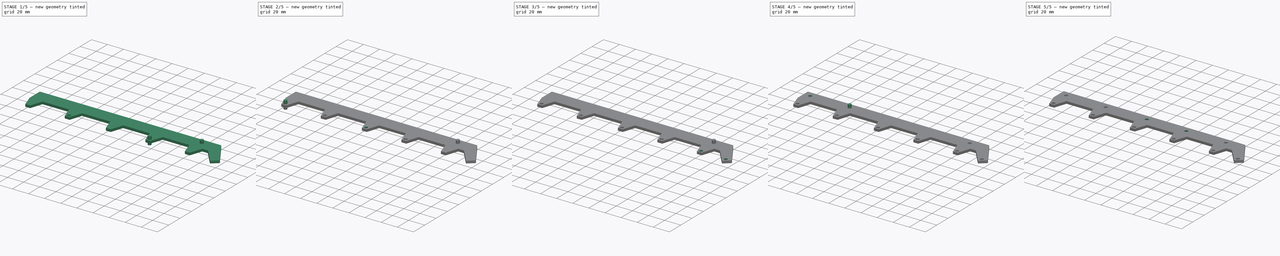
[diagram: build sequence overview — one tinted view per stage of 5, left to right]
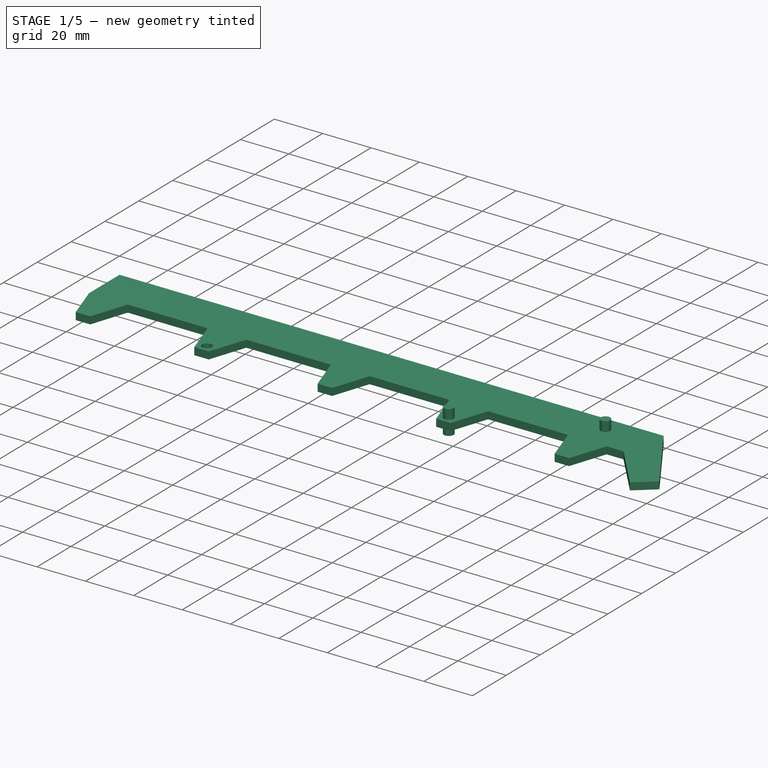
[diagram: stage 1 of 5 — iso view after this stage's code; geometry added in this stage tinted green]
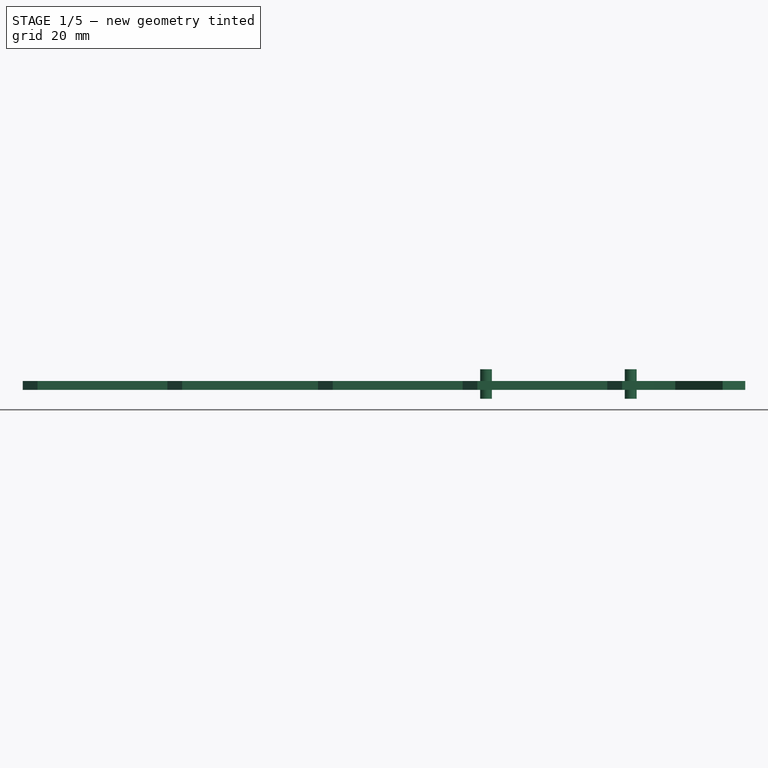
[diagram: stage 1 of 5 — front view after this stage's code; geometry added in this stage tinted green]
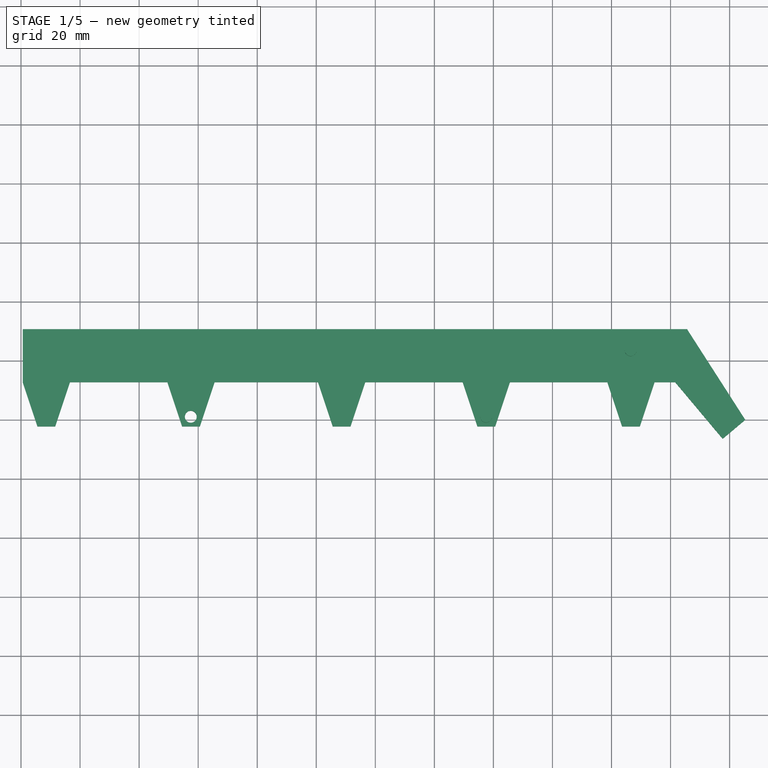
[diagram: stage 1 of 5 — top view after this stage's code; geometry added in this stage tinted green]
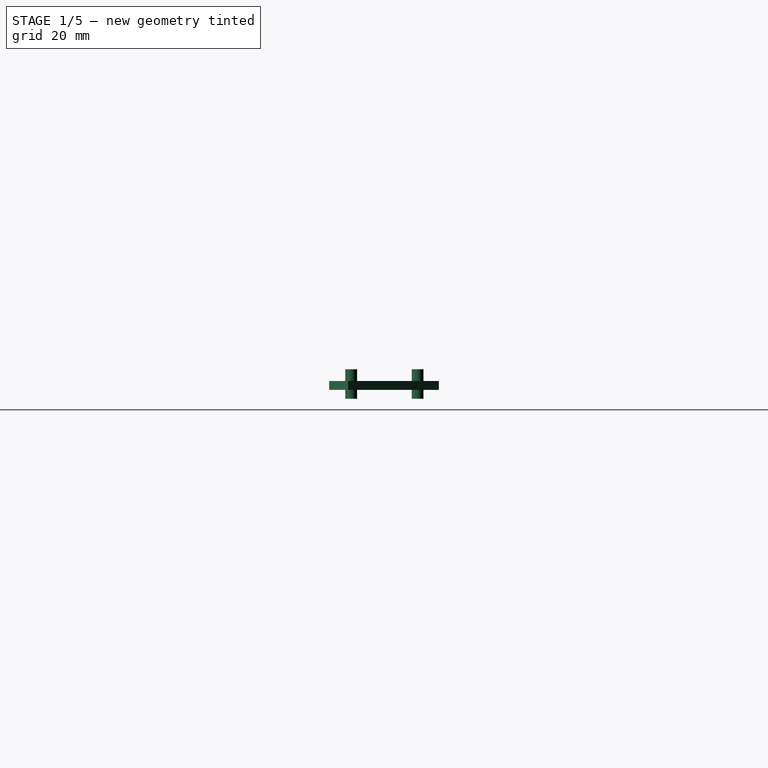
[diagram: stage 1 of 5 — right view after this stage's code; geometry added in this stage tinted green]
FCSTD DOCUMENT  (FreeCAD 0.18R4 (GitTag))
Label: рама внешней подвески
License: All rights reserved
LicenseURL: http://en.wikipedia.org/wiki/All_rights_reserved
objects: Part::Cylinder×11, Part::Cut×11, Sketcher::SketchObject×1, PartDesign::Pad×1, PartDesign::Body×1
note: 26 computed .brp shape members not serialized (recipe doc carries the construction recipe); baked Part::Feature solids carry a one-line shape summary decoded from their .brp

FEATURE [Sketcher::SketchObject] Sketch
  MapMode = 5
  Support = -> [XY_Plane]
  sketch-geometry (25):
    g0: LineSegment StartX=-39.4236 StartY=10.6871 StartZ=0 EndX=185.576 EndY=10.6871 EndZ=0
    g1: LineSegment StartX=-39.4236 StartY=-7.31293 StartZ=0 EndX=-39.4236 EndY=10.6871 EndZ=0
    g2: LineSegment StartX=-39.4236 StartY=-7.31293 StartZ=0 EndX=-34.4236 EndY=-22.3129 EndZ=0
    g3: LineSegment StartX=-28.4236 StartY=-22.3129 StartZ=0 EndX=-23.4236 EndY=-7.31293 EndZ=0
    g4: LineSegment StartX=-23.4236 StartY=-7.31293 StartZ=0 EndX=9.57644 EndY=-7.31293 EndZ=0
    g5: LineSegment StartX=14.5764 StartY=-22.3129 StartZ=0 EndX=20.5764 EndY=-22.3129 EndZ=0
    g6: LineSegment StartX=25.5764 StartY=-7.31293 StartZ=0 EndX=60.5764 EndY=-7.31293 EndZ=0
    g7: LineSegment StartX=9.57644 StartY=-7.31293 StartZ=0 EndX=14.5764 EndY=-22.3129 EndZ=0
    g8: LineSegment StartX=25.5764 StartY=-7.31293 StartZ=0 EndX=20.5764 EndY=-22.3129 EndZ=0
    g9: LineSegment StartX=60.5764 StartY=-7.31293 StartZ=0 EndX=65.5764 EndY=-22.3129 EndZ=0
    g10: LineSegment StartX=65.5764 StartY=-22.3129 StartZ=0 EndX=71.5764 EndY=-22.3129 EndZ=0
    g11: LineSegment StartX=71.5764 StartY=-22.3129 StartZ=0 EndX=76.5764 EndY=-7.31293 EndZ=0
    g12: LineSegment StartX=76.5764 StartY=-7.31293 StartZ=0 EndX=109.576 EndY=-7.31293 EndZ=0
    g13: LineSegment StartX=109.576 StartY=-7.31293 StartZ=0 EndX=114.576 EndY=-22.3129 EndZ=0
    g14: LineSegment StartX=114.576 StartY=-22.3129 StartZ=0 EndX=120.576 EndY=-22.3129 EndZ=0
    g15: LineSegment StartX=120.576 StartY=-22.3129 StartZ=0 EndX=125.576 EndY=-7.31293 EndZ=0
    g16: LineSegment StartX=125.576 StartY=-7.31293 StartZ=0 EndX=158.576 EndY=-7.31293 EndZ=0
    g17: LineSegment StartX=158.576 StartY=-7.31293 StartZ=0 EndX=163.576 EndY=-22.3129 EndZ=0
    g18: LineSegment StartX=163.576 StartY=-22.3129 StartZ=0 EndX=169.576 EndY=-22.3129 EndZ=0
    g19: LineSegment StartX=169.576 StartY=-22.3129 StartZ=0 EndX=174.576 EndY=-7.31293 EndZ=0
    g20: LineSegment StartX=174.576 StartY=-7.31293 StartZ=0 EndX=181.576 EndY=-7.31293 EndZ=0
    g21: LineSegment StartX=185.576 StartY=10.6871 StartZ=0 EndX=205.307 EndY=-20.0362 EndZ=0
    g22: LineSegment StartX=205.307 StartY=-20.0362 StartZ=0 EndX=197.646 EndY=-26.464 EndZ=0
    g23: LineSegment StartX=197.646 StartY=-26.464 StartZ=0 EndX=181.576 EndY=-7.31293 EndZ=0
    g24: LineSegment StartX=-34.4236 StartY=-22.3129 StartZ=0 EndX=-28.4236 EndY=-22.3129 EndZ=0
  constraints (74):
    c: Coincident(g1,g0)
    c: Horizontal(g0)
    c: Vertical(g1)
    c: Distance(g1) = 18
    c: DistanceX(g2,g2) = 5
    c: Coincident(g1,g2)
    c: Distance(g0) = 225
    c: DistanceY(g2,g2) = 15
    c: Equal(g2,g3) = 5
    c: Equal(g2,g3) = 15
    c: DistanceX(g3,g3) = 5
    c: Distance(g4) = 33
    c: Coincident(g3,g4)
    c: Coincident(g5,g7)
    c: Coincident(g4,g7)
    c: Coincident(g6,g8)
    c: Coincident(g5,g8)
    c: DistanceY(g7,g7) = 15
    c: DistanceX(g7,g7) = 5
    c: DistanceX(g5,g5) = 6
    c: Parallel(g5,g0)
    c: Parallel(g6,g0)
    c: DistanceX(g8,g8) = 5
    c: DistanceY(g8,g8) = 15
    c: Coincident(g6,g9)
    c: Equal(g9,g7)
    c: Parallel(g9,g7)
    c: Distance(g6) = 35
    c: Coincident(g9,g10)
    c: Parallel(g10,g5)
    c: Equal(g10,g5)
    c: Coincident(g10,g11)
    c: Parallel(g11,g8)
    c: Equal(g11,g8)
    c: Coincident(g11,g12)
    c: Parallel(g12,g6)
    c: Equal(g12,g4)
    c: Coincident(g12,g13)
    c: Parallel(g9,g13)
    c: Equal(g13,g9)
    c: Parallel(g14,g10)
    c: Equal(g14,g10)
    c: Coincident(g13,g14)
    c: Coincident(g14,g15)
    c: Coincident(g15,g16)
    c: Parallel(g15,g11)
    c: Parallel(g16,g-1)
    c: Equal(g15,g11)
    c: Equal(g16,g12)
    c: Coincident(g19,g20)
    c: Coincident(g18,g19)
    c: Coincident(g17,g18)
    c: Coincident(g16,g17)
    c: Parallel(g17,g13)
    c: Parallel(g18,g14)
    c: Parallel(g19,g15)
    c: Parallel(g20,g16)
    c: Equal(g17,g13)
    c: Equal(g18,g14)
    c: Equal(g19,g15)
    c: Coincident(g21,g22)
    c: Coincident(g22,g23)
    c: Perpendicular(g23,g22)
    c: Coincident(g20,g23)
    c: Distance(g20) = 7
    c: Distance(g23) = 25
    c: Distance(g22) = 10
    c: Coincident(g3,g24)
    c: Coincident(g2,g24)
    c: Parallel(g24,g4)
    c: Parallel(g4,g0)
    c: Equal(g5,g24)
    c: Angle(g20,g23) = 2.26893
    c: Coincident(g0,g21)
FEATURE [PartDesign::Pad] Pad
  Length = 3
  Length2 = 100
  Profile = -> Sketch
  Type = 0
FEATURE [PartDesign::Body] Body
  Group = -> [Sketch,Pad]
  Origin = -> Origin
  Tip = -> Pad
FEATURE [Part::Cylinder] Cylinder  label="Цилиндр"
  Angle = 360
  AttacherType = Attacher::AttachEngine3D
  Height = 10
  Placement = pos=(17.5,-19,-3) rot=(0,0,1;0rad)
  Radius = 2
FEATURE [Part::Cylinder] Cylinder002  label="Цилиндр002"
  Angle = 360
  AttacherType = Attacher::AttachEngine3D
  Height = 10
  Placement = pos=(117.5,-19,-3) rot=(0,0,1;0rad)
  Radius = 2
FEATURE [Part::Cut] Cut
  Base = -> Body
  Tool = -> Cylinder
FEATURE [Part::Cylinder] Cylinder006  label="Цилиндр006"
  Angle = 360
  AttacherType = Attacher::AttachEngine3D
  Height = 10
  Placement = pos=(166.5,3.5,-3) rot=(0,0,1;0rad)
  Radius = 2
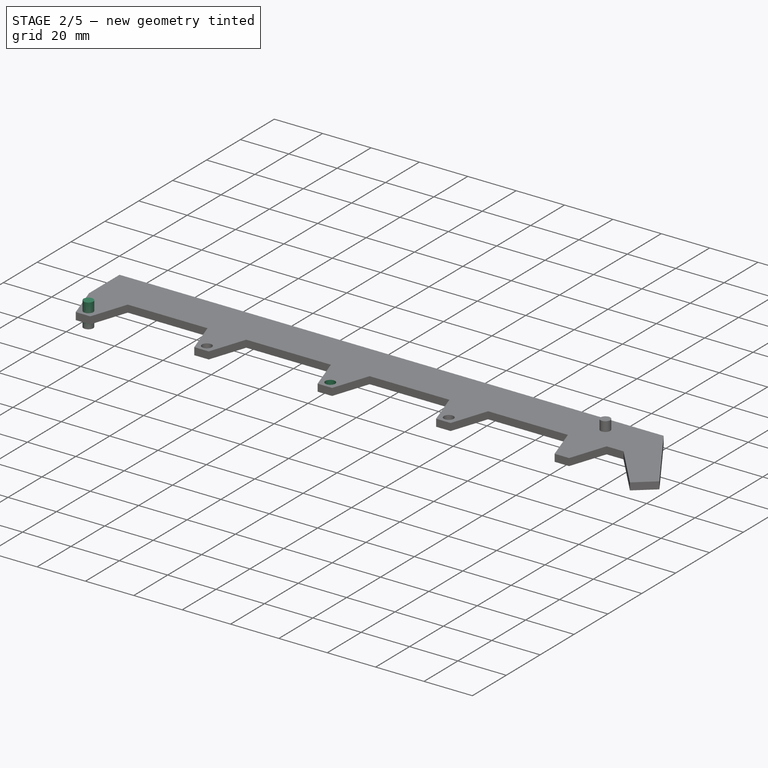
[diagram: stage 2 of 5 — iso view after this stage's code; geometry added in this stage tinted green]
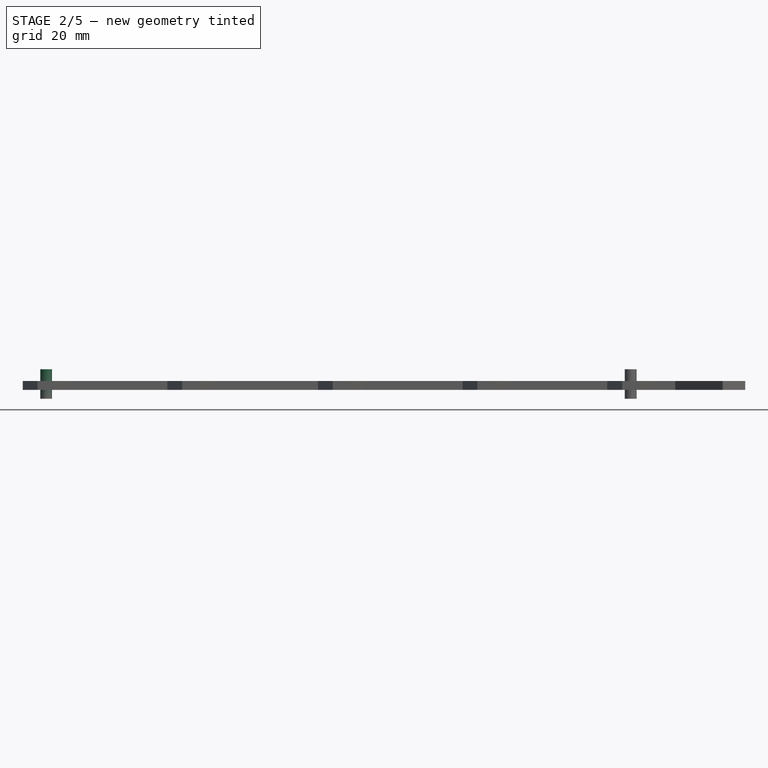
[diagram: stage 2 of 5 — front view after this stage's code; geometry added in this stage tinted green]
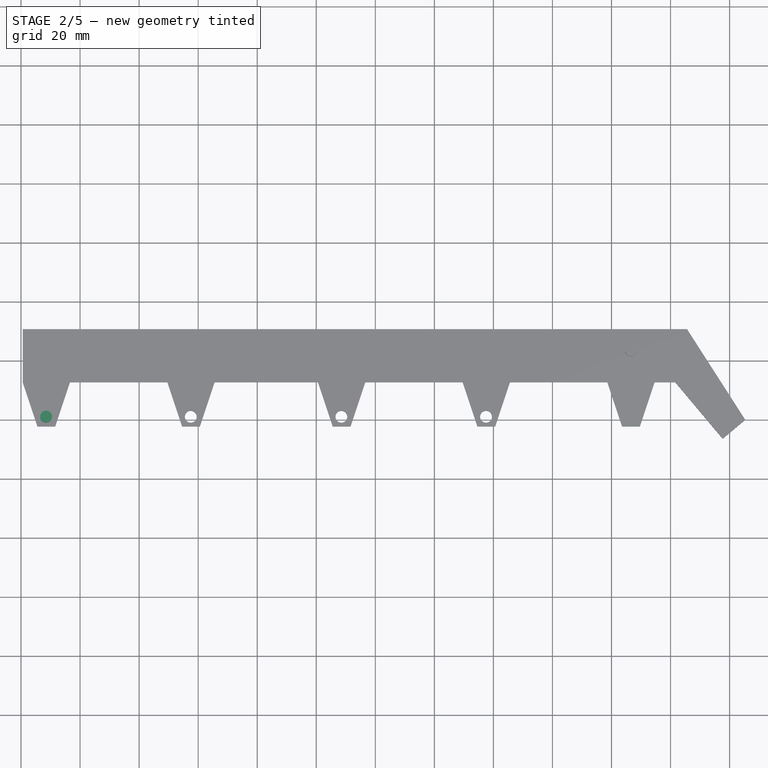
[diagram: stage 2 of 5 — top view after this stage's code; geometry added in this stage tinted green]
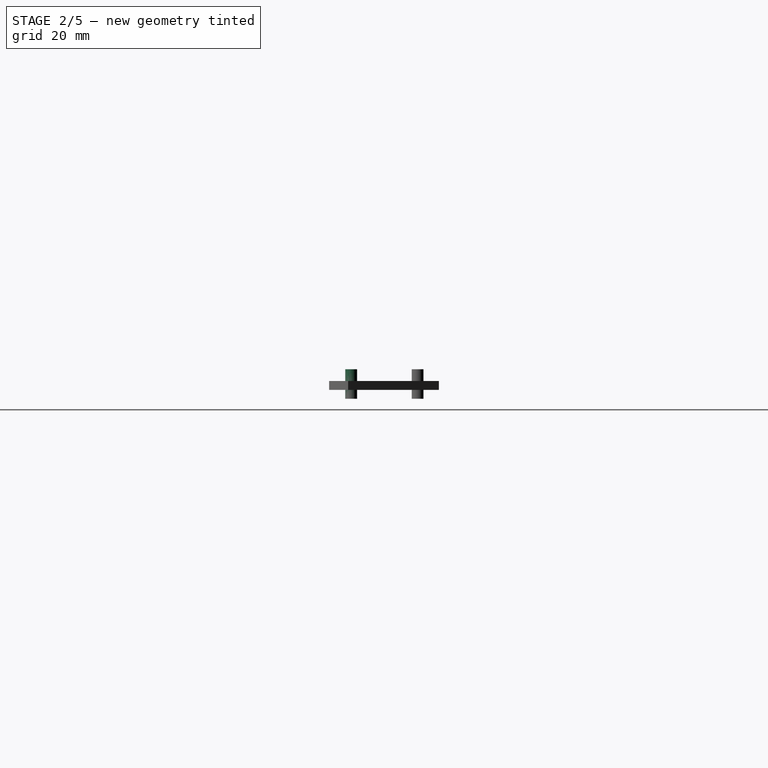
[diagram: stage 2 of 5 — right view after this stage's code; geometry added in this stage tinted green]
FEATURE [Part::Cylinder] Cylinder003  label="Цилиндр003"
  Angle = 360
  AttacherType = Attacher::AttachEngine3D
  Height = 10
  Placement = pos=(68.5,-19,-3) rot=(0,0,1;0rad)
  Radius = 2
FEATURE [Part::Cylinder] Cylinder004  label="Цилиндр004"
  Angle = 360
  AttacherType = Attacher::AttachEngine3D
  Height = 10
  Placement = pos=(-31.5,-19,-3) rot=(0,0,1;0rad)
  Radius = 2
FEATURE [Part::Cut] Cut001
  Base = -> Cut
  Tool = -> Cylinder002
FEATURE [Part::Cut] Cut002
  Base = -> Cut001
  Tool = -> Cylinder003
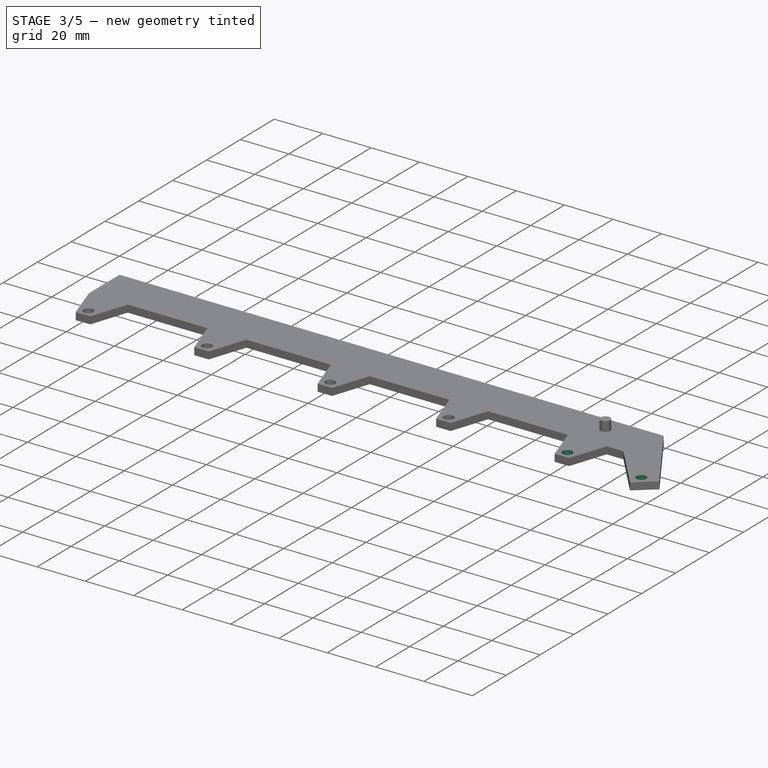
[diagram: stage 3 of 5 — iso view after this stage's code; geometry added in this stage tinted green]
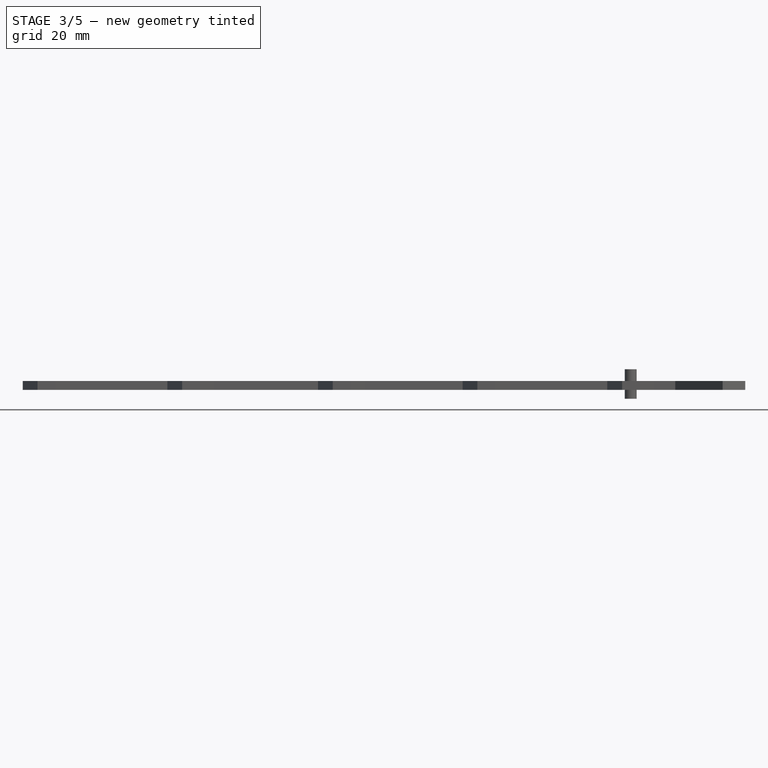
[diagram: stage 3 of 5 — front view after this stage's code; geometry added in this stage tinted green]
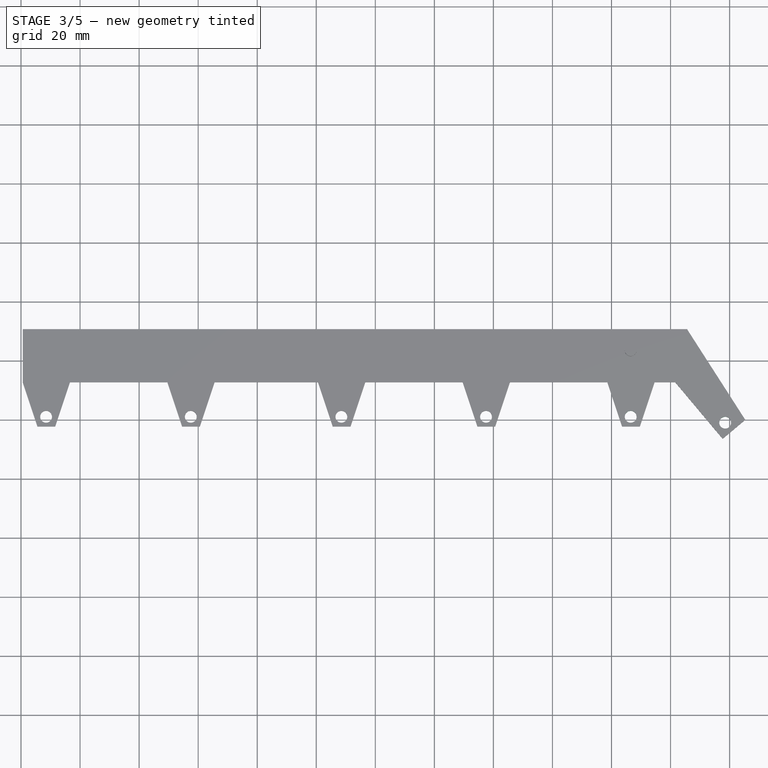
[diagram: stage 3 of 5 — top view after this stage's code; geometry added in this stage tinted green]
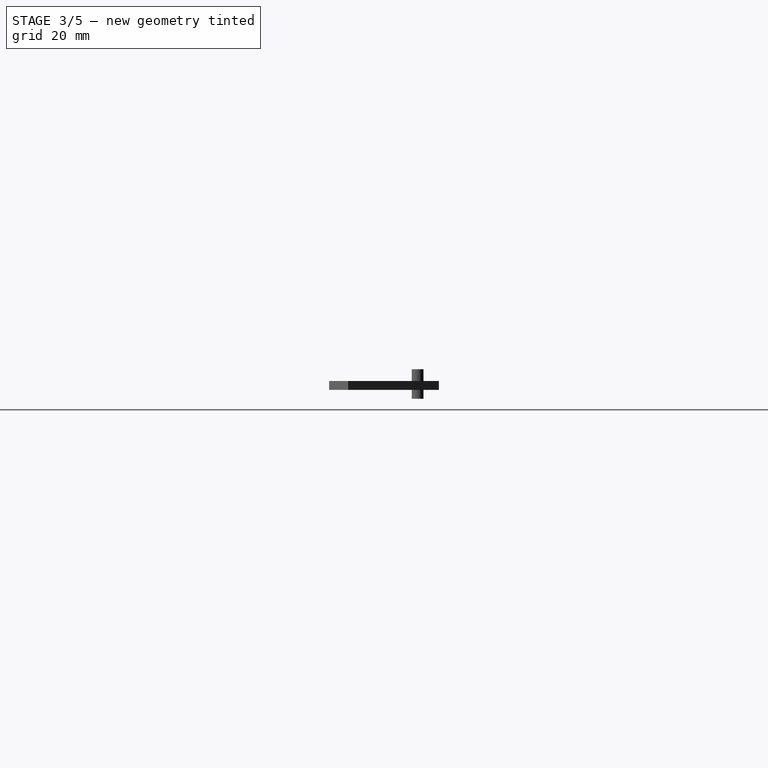
[diagram: stage 3 of 5 — right view after this stage's code; geometry added in this stage tinted green]
FEATURE [Part::Cylinder] Cylinder001  label="Цилиндр001"
  Angle = 360
  AttacherType = Attacher::AttachEngine3D
  Height = 10
  Placement = pos=(166.5,-19,-3) rot=(0,0,1;0rad)
  Radius = 2
FEATURE [Part::Cylinder] Cylinder005  label="Цилиндр005"
  Angle = 360
  AttacherType = Attacher::AttachEngine3D
  Height = 10
  Placement = pos=(198.5,-21,-3) rot=(0,0,1;0rad)
  Radius = 2
FEATURE [Part::Cut] Cut003
  Base = -> Cut002
  Tool = -> Cylinder004
FEATURE [Part::Cut] Cut004
  Base = -> Cut003
  Tool = -> Cylinder005
FEATURE [Part::Cut] Cut005
  Base = -> Cut004
  Tool = -> Cylinder001
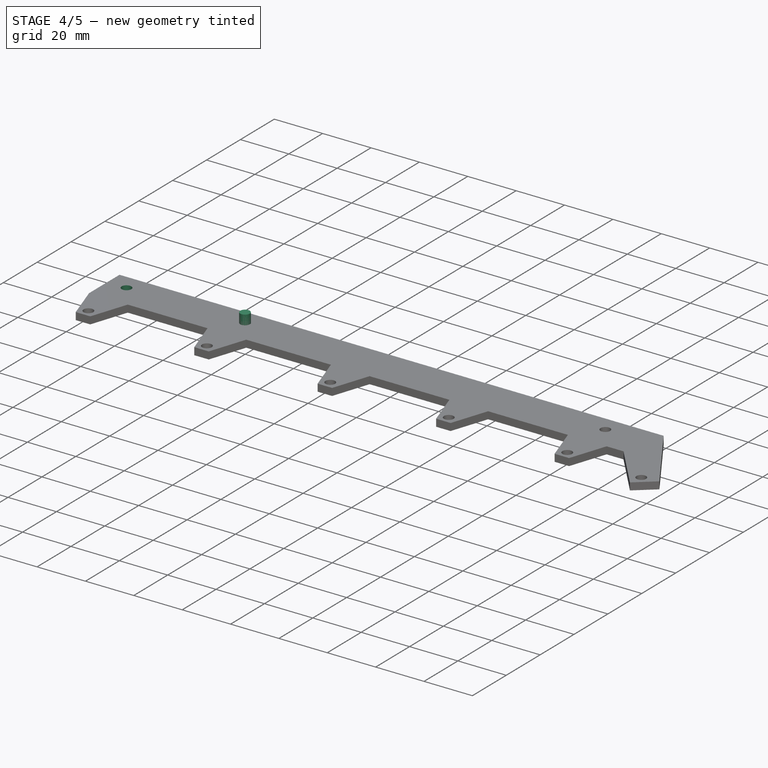
[diagram: stage 4 of 5 — iso view after this stage's code; geometry added in this stage tinted green]
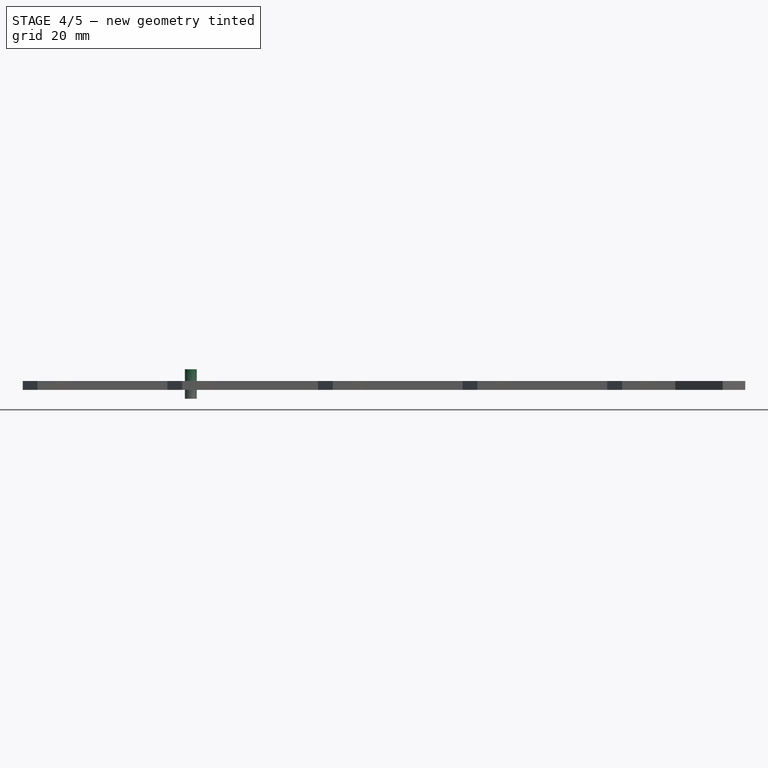
[diagram: stage 4 of 5 — front view after this stage's code; geometry added in this stage tinted green]
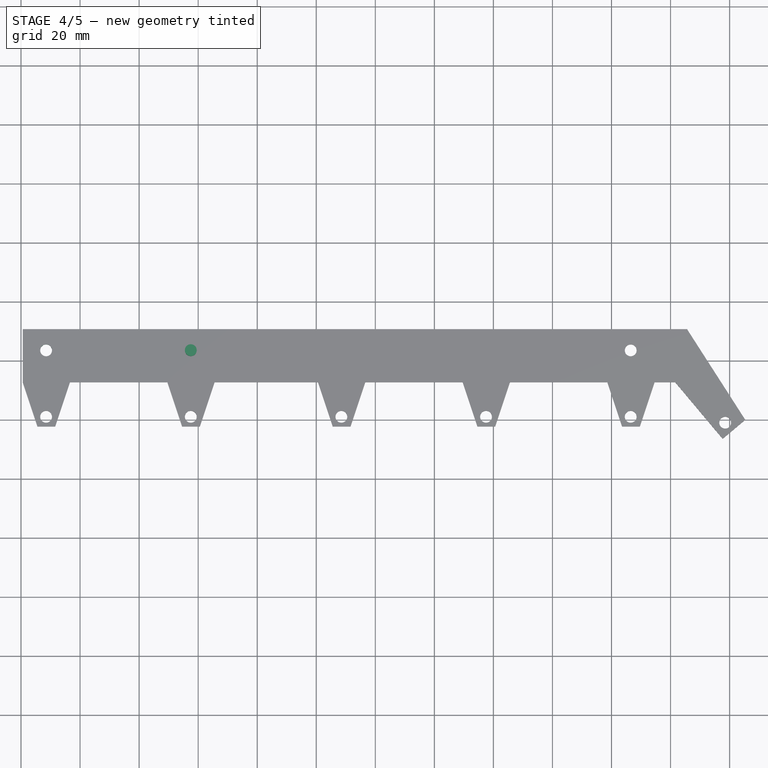
[diagram: stage 4 of 5 — top view after this stage's code; geometry added in this stage tinted green]
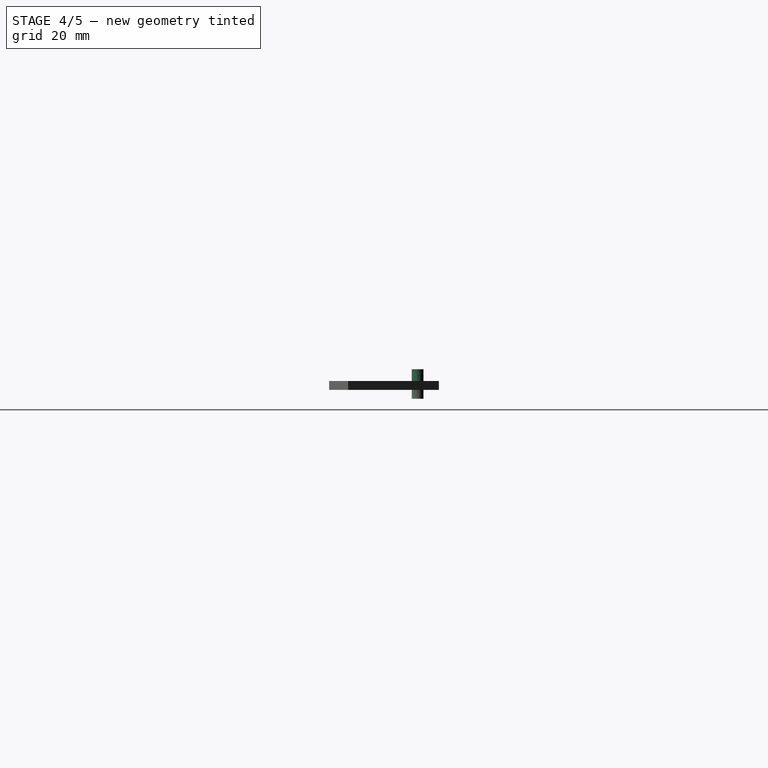
[diagram: stage 4 of 5 — right view after this stage's code; geometry added in this stage tinted green]
FEATURE [Part::Cylinder] Cylinder009  label="Цилиндр009"
  Angle = 360
  AttacherType = Attacher::AttachEngine3D
  Height = 10
  Placement = pos=(17.5,3.5,-3) rot=(0,0,1;0rad)
  Radius = 2
FEATURE [Part::Cylinder] Cylinder010  label="Цилиндр010"
  Angle = 360
  AttacherType = Attacher::AttachEngine3D
  Height = 10
  Placement = pos=(-31.5,3.5,-3) rot=(0,0,1;0rad)
  Radius = 2
FEATURE [Part::Cut] Cut006
  Base = -> Cut005
  Tool = -> Cylinder006
FEATURE [Part::Cut] Cut007
  Base = -> Cut006
  Tool = -> Cylinder010
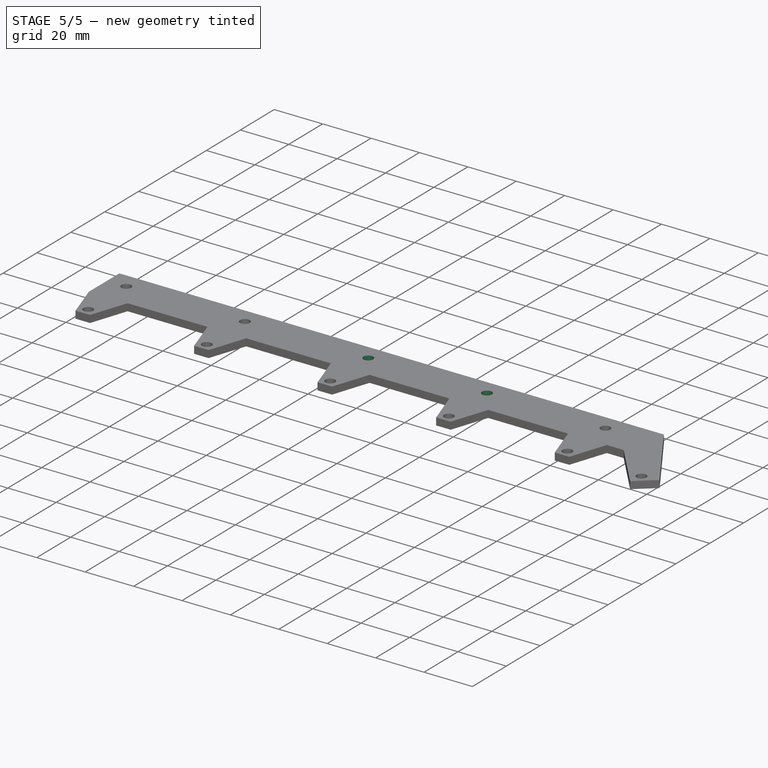
[diagram: stage 5 of 5 — iso view after this stage's code; geometry added in this stage tinted green]
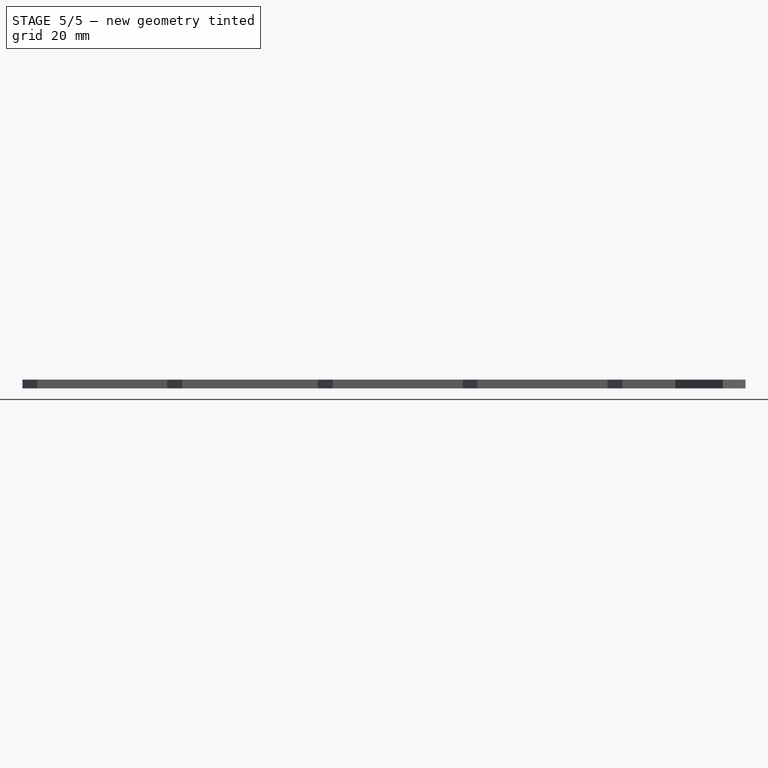
[diagram: stage 5 of 5 — front view after this stage's code; geometry added in this stage tinted green]
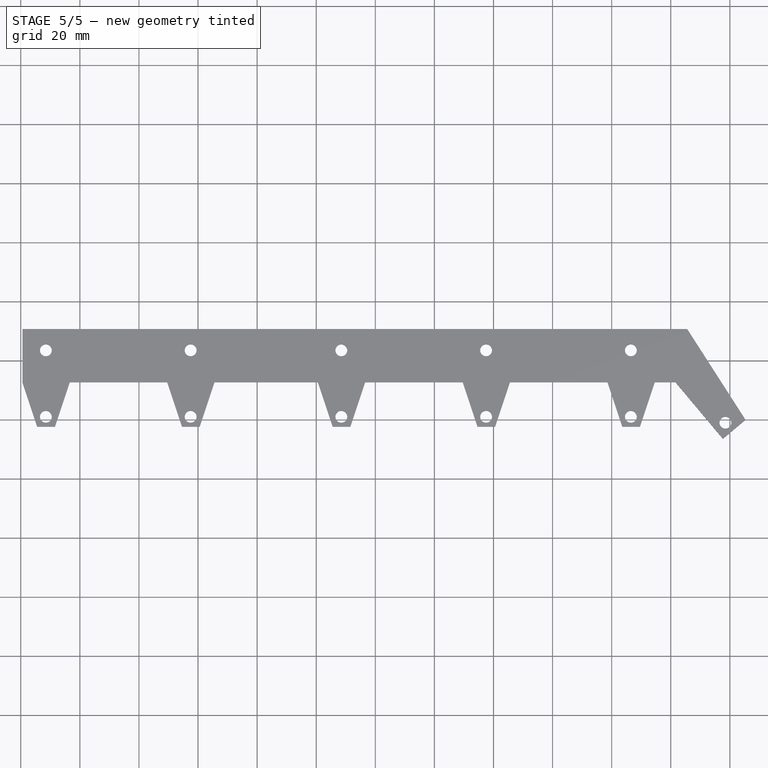
[diagram: stage 5 of 5 — top view after this stage's code; geometry added in this stage tinted green]
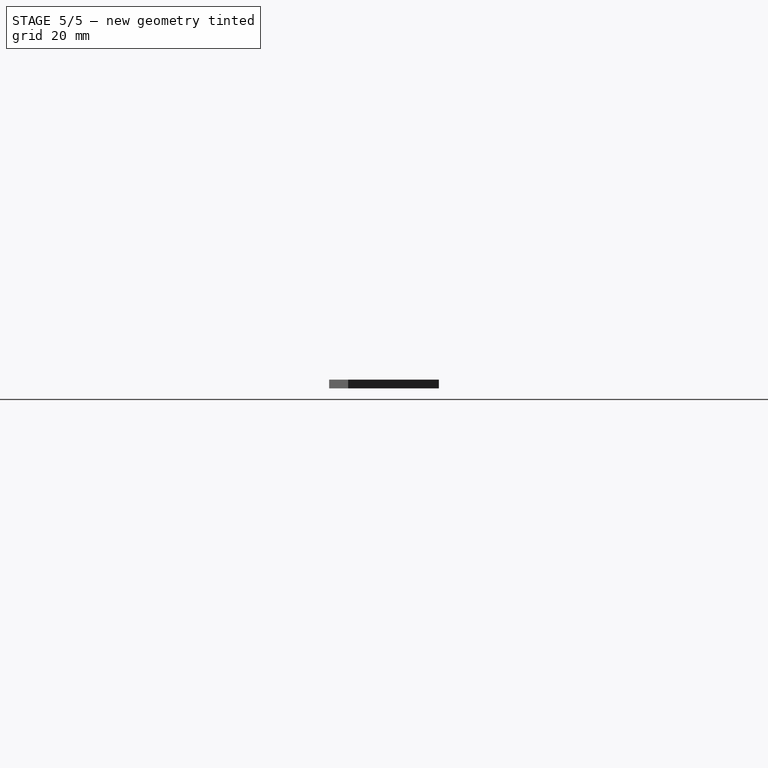
[diagram: stage 5 of 5 — right view after this stage's code; geometry added in this stage tinted green]
FEATURE [Part::Cylinder] Cylinder007  label="Цилиндр007"
  Angle = 360
  AttacherType = Attacher::AttachEngine3D
  Height = 10
  Placement = pos=(117.5,3.5,-3) rot=(0,0,1;0rad)
  Radius = 2
FEATURE [Part::Cylinder] Cylinder008  label="Цилиндр008"
  Angle = 360
  AttacherType = Attacher::AttachEngine3D
  Height = 10
  Placement = pos=(68.5,3.5,-3) rot=(0,0,1;0rad)
  Radius = 2
FEATURE [Part::Cut] Cut008
  Base = -> Cut007
  Tool = -> Cylinder009
FEATURE [Part::Cut] Cut009
  Base = -> Cut008
  Tool = -> Cylinder008
FEATURE [Part::Cut] Cut010
  Base = -> Cut009
  Tool = -> Cylinder007
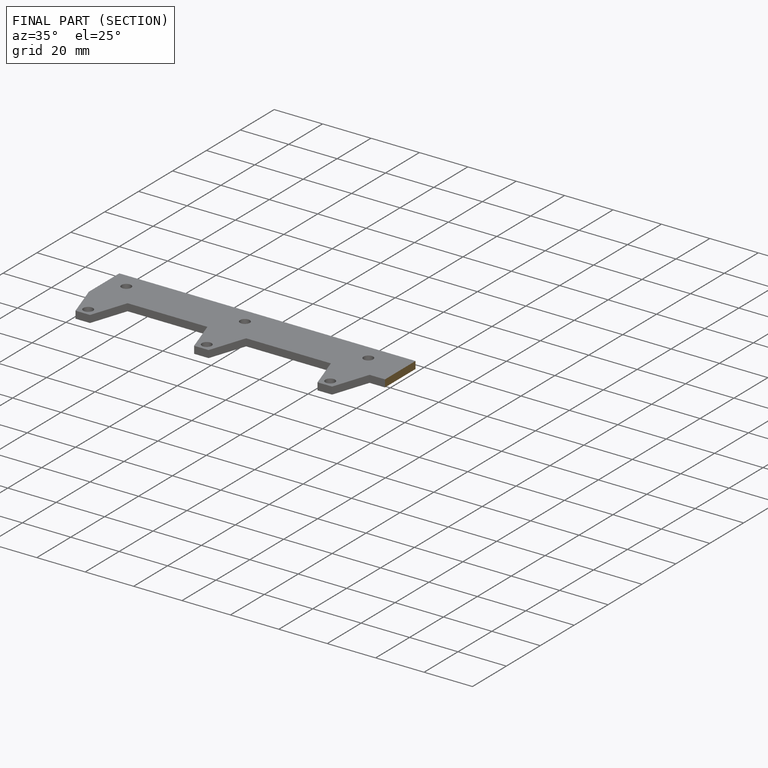
[diagram: finished part — half-section view (interior)]
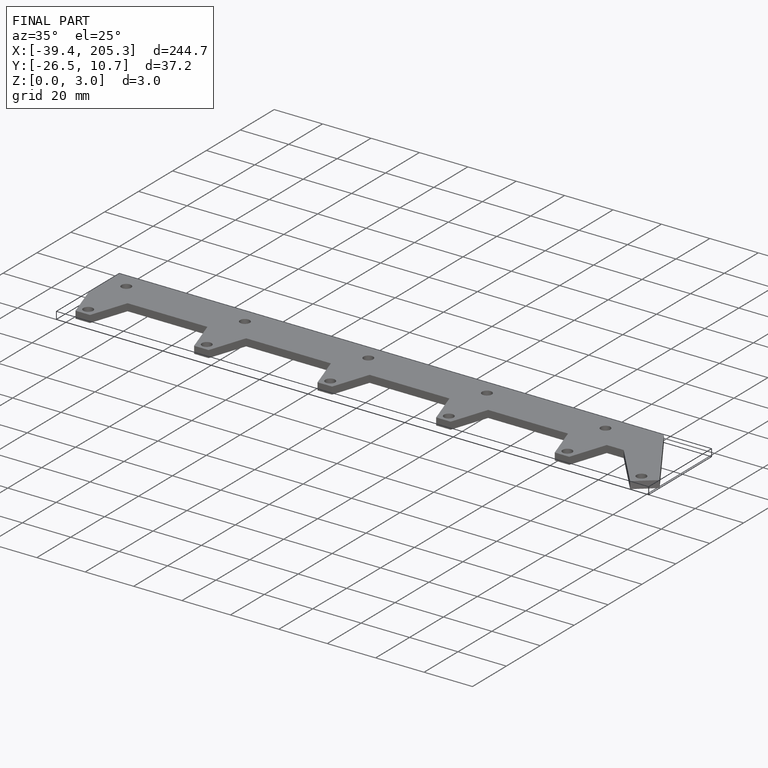
[diagram: finished part — iso view with bounding-box wireframe]
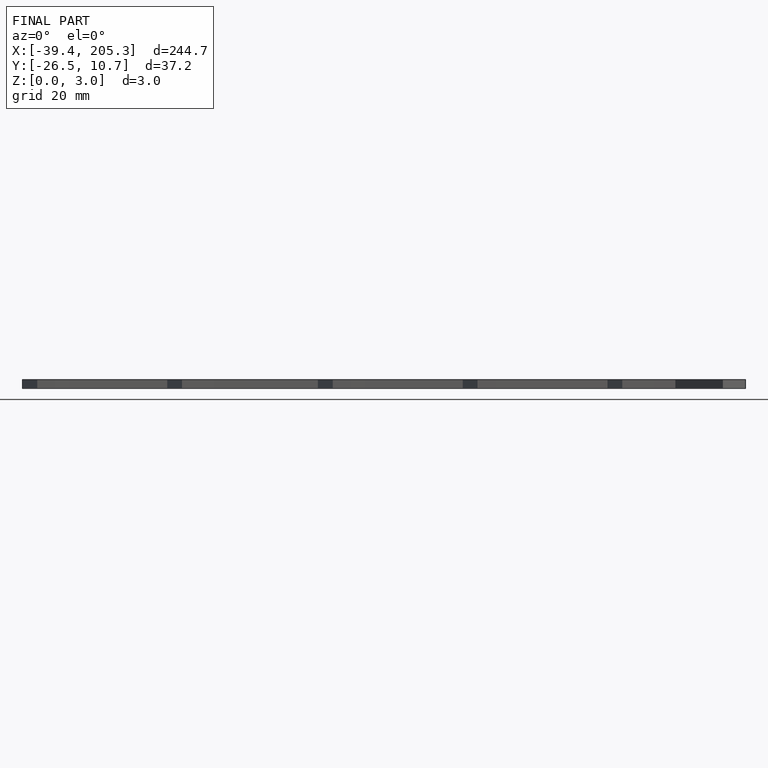
[diagram: finished part — front view with bounding-box wireframe]
